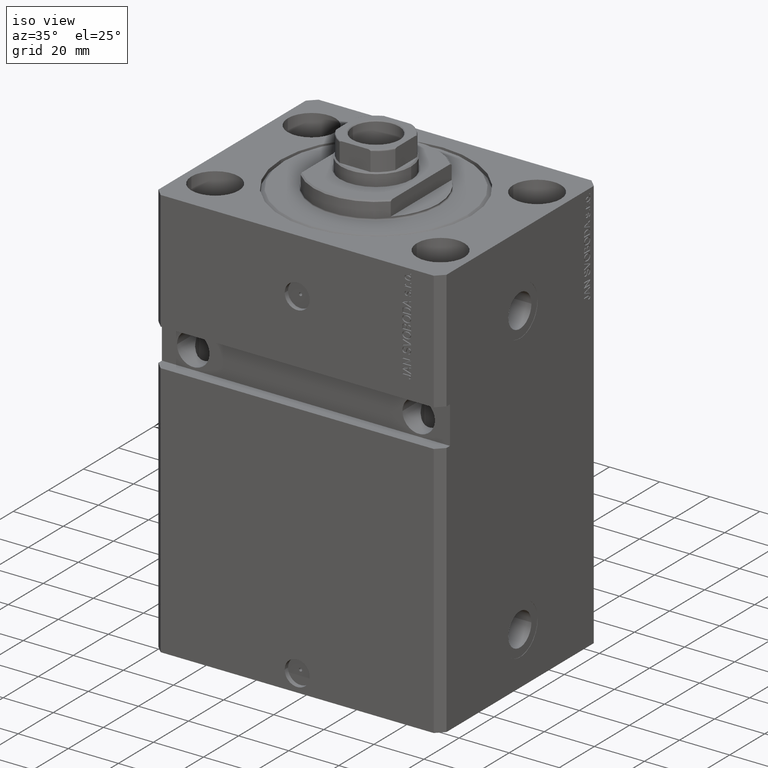
[diagram: clean part render]
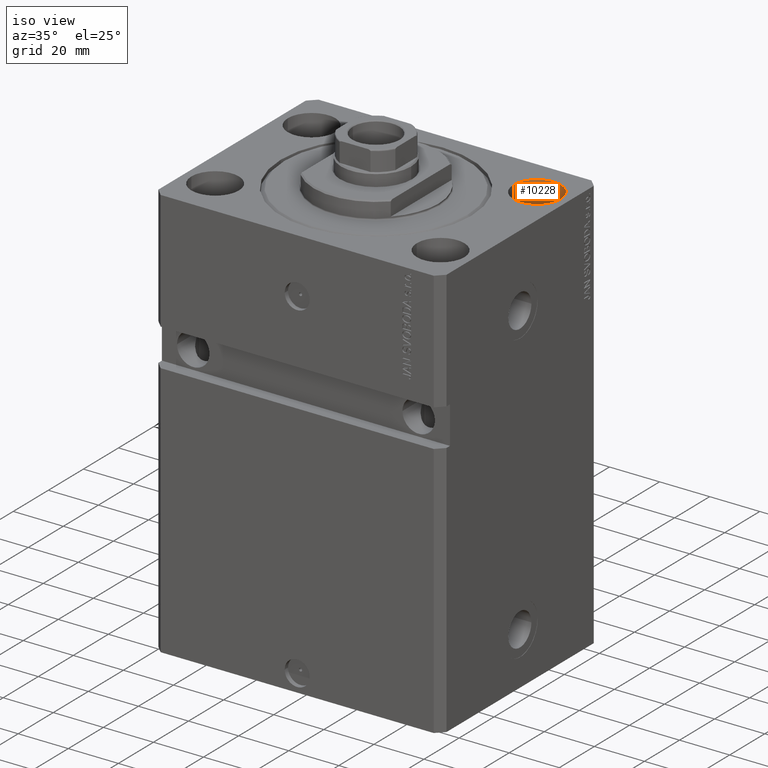
[diagram: same view with one face highlighted and labeled with its STEP entity id]
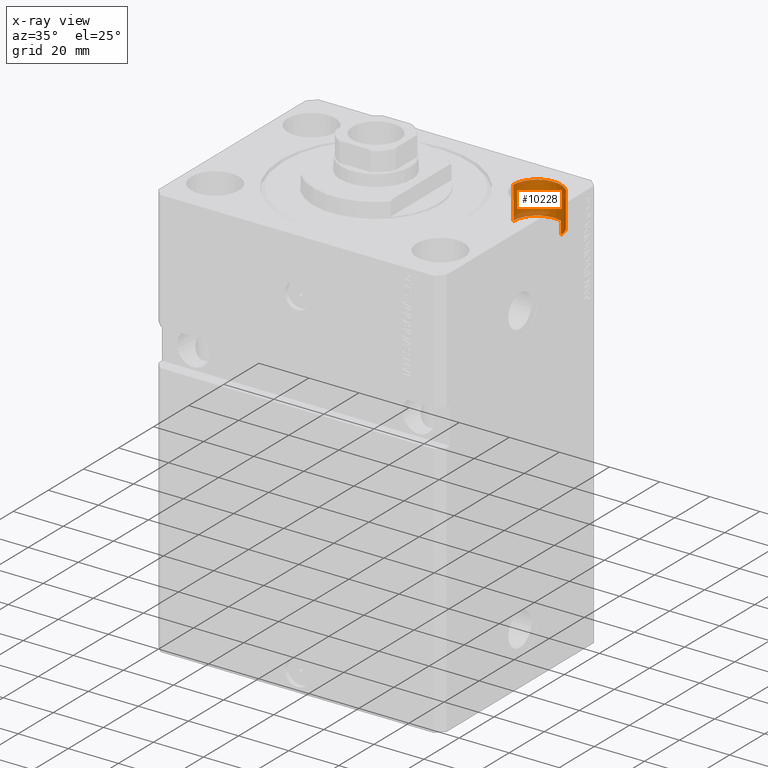
[diagram: x-ray of the same camera — body ghosted, the highlighted face saturated]
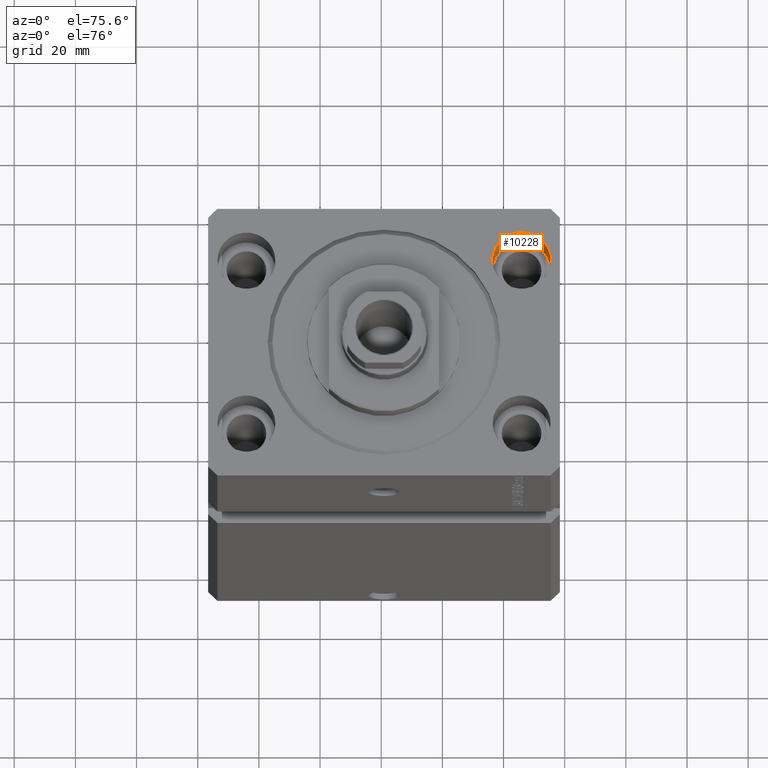
[diagram: same view with one face highlighted and labeled with its STEP entity id]
A machine part, iso view. The second image highlights one B-rep face of the part: STEP entity #10228.
The next image is the same camera in x-ray: the body ghosted, the highlighted face saturated — about 9% of this face is hidden behind the body in this view.
A second angle (auxiliary view) of the same face is appended — the face is thin or edge-on in the first view.
In plain terms, the highlighted cylindrical surface (edge-blend (fillet) strip) has radius 9.5 mm, axis along (0, 0, 1).
Its self-contained STEP definition (entity closure, byte-faithful):
#3971 = CARTESIAN_POINT ( 'NONE',  ( 45.00000000000000000, 27.50000000000001776, -13.00000000000000000 ) ) ;
#4283 = EDGE_CURVE ( 'NONE', #31023, #21411, #28277, .T. ) ;
#5760 = AXIS2_PLACEMENT_3D ( 'NONE', #36940, #14043, #26454 ) ;
#6366 = ORIENTED_EDGE ( 'NONE', *, *, #18947, .F. ) ;
#8321 = VERTEX_POINT ( 'NONE', #46806 ) ;
#9124 = CARTESIAN_POINT ( 'NONE',  ( 35.50000000000000000, 27.50000000000001776, -13.00000000000000000 ) ) ;
#9849 = VECTOR ( 'NONE', #11414, 1000.000000000000000 ) ;
#10228 = ADVANCED_FACE ( 'NONE', ( #44906 ), #11292, .F. ) ;
#10577 = EDGE_LOOP ( 'NONE', ( #41768, #6366, #49191, #39779 ) ) ;
#11013 = EDGE_CURVE ( 'NONE', #8321, #21411, #43922, .T. ) ;
#11292 = CYLINDRICAL_SURFACE ( 'NONE', #5760, 9.500000000000001776 ) ;
#11414 = DIRECTION ( 'NONE',  ( -0.000000000000000000, -0.000000000000000000, 1.000000000000000000 ) ) ;
#13342 = DIRECTION ( 'NONE',  ( -0.000000000000000000, -0.000000000000000000, 1.000000000000000000 ) ) ;
#13707 = EDGE_CURVE ( 'NONE', #17958, #8321, #49225, .T. ) ;
#14043 = DIRECTION ( 'NONE',  ( -0.000000000000000000, -0.000000000000000000, 1.000000000000000000 ) ) ;
#14280 = VECTOR ( 'NONE', #13342, 1000.000000000000000 ) ;
#15379 = CARTESIAN_POINT ( 'NONE',  ( 54.50000000000000000, 27.50000000000001776, -13.00000000000000000 ) ) ;
#17958 = VERTEX_POINT ( 'NONE', #37553 ) ;
#18751 = DIRECTION ( 'NONE',  ( 1.000000000000000000, 0.000000000000000000, 0.000000000000000000 ) ) ;
#18947 = EDGE_CURVE ( 'NONE', #17958, #31023, #44877, .T. ) ;
#18988 = DIRECTION ( 'NONE',  ( 0.000000000000000000, 0.000000000000000000, 1.000000000000000000 ) ) ;
#19116 = DIRECTION ( 'NONE',  ( 1.000000000000000000, 0.000000000000000000, 0.000000000000000000 ) ) ;
#19660 = CARTESIAN_POINT ( 'NONE',  ( 35.50000000000000000, 27.50000000000001776, 0.000000000000000000 ) ) ;
#21411 = VERTEX_POINT ( 'NONE', #19660 ) ;
#26454 = DIRECTION ( 'NONE',  ( 1.000000000000000000, 0.000000000000000000, 0.000000000000000000 ) ) ;
#28277 = LINE ( 'NONE', #9124, #14280 ) ;
#31023 = VERTEX_POINT ( 'NONE', #39904 ) ;
#33194 = CARTESIAN_POINT ( 'NONE',  ( 45.00000000000000000, 27.50000000000001776, 0.000000000000000000 ) ) ;
#35302 = AXIS2_PLACEMENT_3D ( 'NONE', #3971, #42036, #19116 ) ;
#36742 = AXIS2_PLACEMENT_3D ( 'NONE', #33194, #18988, #18751 ) ;
#36940 = CARTESIAN_POINT ( 'NONE',  ( 45.00000000000000000, 27.50000000000001776, -13.00000000000000000 ) ) ;
#37553 = CARTESIAN_POINT ( 'NONE',  ( 54.50000000000000000, 27.50000000000001776, -13.00000000000000000 ) ) ;
#39779 = ORIENTED_EDGE ( 'NONE', *, *, #11013, .T. ) ;
#39904 = CARTESIAN_POINT ( 'NONE',  ( 35.50000000000000000, 27.50000000000001776, -13.00000000000000000 ) ) ;
#41768 = ORIENTED_EDGE ( 'NONE', *, *, #4283, .F. ) ;
#42036 = DIRECTION ( 'NONE',  ( 0.000000000000000000, 0.000000000000000000, 1.000000000000000000 ) ) ;
#43922 = CIRCLE ( 'NONE', #36742, 9.500000000000001776 ) ;
#44877 = CIRCLE ( 'NONE', #35302, 9.500000000000001776 ) ;
#44906 = FACE_OUTER_BOUND ( 'NONE', #10577, .T. ) ;
#46806 = CARTESIAN_POINT ( 'NONE',  ( 54.50000000000000000, 27.50000000000001776, 0.000000000000000000 ) ) ;
#49191 = ORIENTED_EDGE ( 'NONE', *, *, #13707, .T. ) ;
#49225 = LINE ( 'NONE', #15379, #9849 ) ;